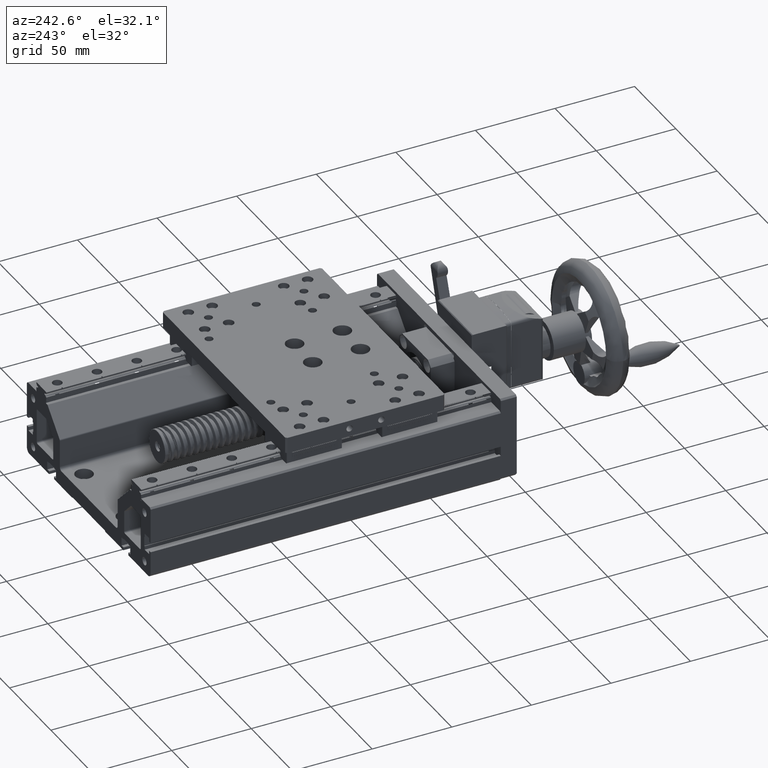
[diagram: clean part render]
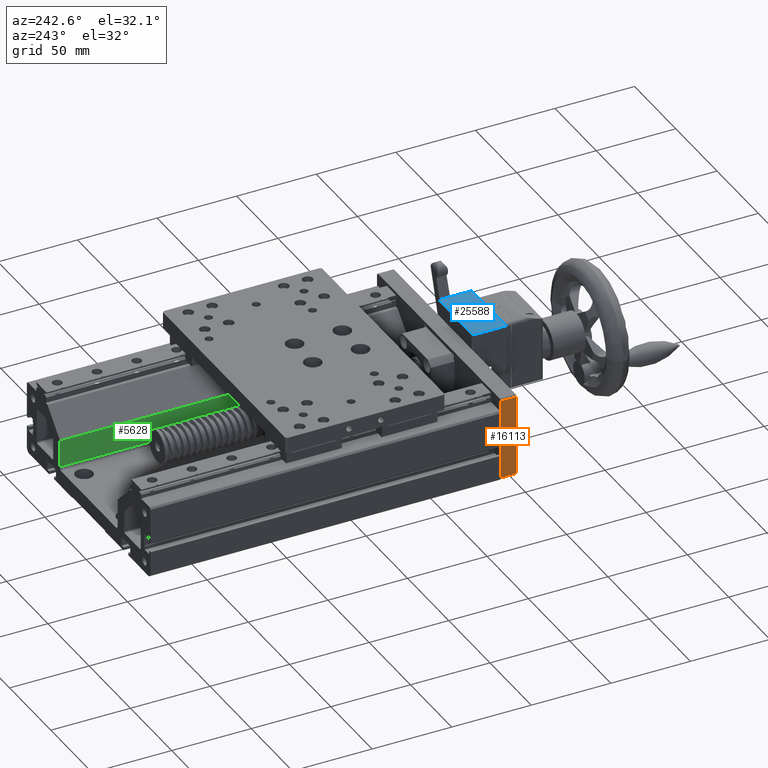
[diagram: same view with three faces highlighted in distinct colors, each labeled with its STEP entity id]
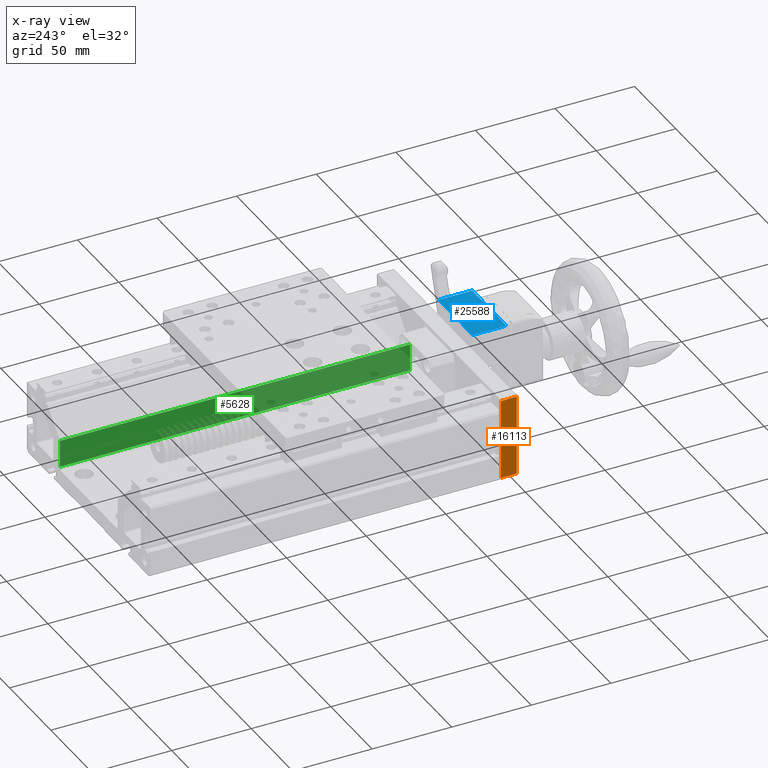
[diagram: x-ray of the same camera — body ghosted, the three highlighted faces saturated]
A machine part, auxiliary view with three faces highlighted in distinct colors.
The next image is the same camera in x-ray (body ghosted, the three faces saturated) — at least one of them is partly hidden behind the body in this view.
Their STEP definitions:

[orange] entity #16113 — the highlighted planar face has unit normal (1, -0, 0).
#181 = CARTESIAN_POINT ( 'NONE',  ( -102.8264794798026571, -143.0472645979103845, 29.99999999999936051 ) ) ;
#778 = CARTESIAN_POINT ( 'NONE',  ( -102.8264794797981665, -133.0472645979104129, -20.50000000001084288 ) ) ;
#2611 = VERTEX_POINT ( 'NONE', #19859 ) ;
#2692 = ORIENTED_EDGE ( 'NONE', *, *, #18552, .F. ) ;
#2875 = CARTESIAN_POINT ( 'NONE',  ( -102.8264794797981949, -143.0472645979103845, -20.50000000001084288 ) ) ;
#6177 = VECTOR ( 'NONE', #13760, 1000.000000000000000 ) ;
#6607 = ORIENTED_EDGE ( 'NONE', *, *, #12298, .T. ) ;
#6642 = DIRECTION ( 'NONE',  ( 1.000000000000000000, -4.183339140829115698E-15, 8.802419739201562490E-14 ) ) ;
#7315 = DIRECTION ( 'NONE',  ( -4.282904442465670179E-15, -1.000000000000000000, 4.205762191327117395E-16 ) ) ;
#7372 = LINE ( 'NONE', #13406, #6177 ) ;
#7552 = CARTESIAN_POINT ( 'NONE',  ( -102.8264794797981665, -133.0472645979104129, -20.50000000001084288 ) ) ;
#11603 = EDGE_LOOP ( 'NONE', ( #26480, #28274, #2692, #6607 ) ) ;
#11930 = AXIS2_PLACEMENT_3D ( 'NONE', #11966, #6642, #17783 ) ;
#11966 = CARTESIAN_POINT ( 'NONE',  ( -102.8264794797981665, -133.0472645979104129, -20.50000000001084288 ) ) ;
#12298 = EDGE_CURVE ( 'NONE', #23510, #17611, #7372, .T. ) ;
#13406 = CARTESIAN_POINT ( 'NONE',  ( -102.8264794797981665, -133.0472645979104129, -20.50000000001084288 ) ) ;
#13760 = DIRECTION ( 'NONE',  ( -4.282904442465670179E-15, -1.000000000000000000, 4.205762191327117395E-16 ) ) ;
#15593 = LINE ( 'NONE', #7552, #28822 ) ;
#16113 = ADVANCED_FACE ( 'NONE', ( #17069 ), #25454, .F. ) ;
#17069 = FACE_OUTER_BOUND ( 'NONE', #11603, .T. ) ;
#17611 = VERTEX_POINT ( 'NONE', #26320 ) ;
#17783 = DIRECTION ( 'NONE',  ( 8.802419739201562490E-14, -2.785001101985128722E-16, -1.000000000000000000 ) ) ;
#18522 = VECTOR ( 'NONE', #33467, 1000.000000000000000 ) ;
#18552 = EDGE_CURVE ( 'NONE', #23510, #2611, #15593, .T. ) ;
#19859 = CARTESIAN_POINT ( 'NONE',  ( -102.8264794798026145, -133.0472645979103845, 29.99999999999936051 ) ) ;
#21971 = VERTEX_POINT ( 'NONE', #181 ) ;
#23510 = VERTEX_POINT ( 'NONE', #778 ) ;
#24295 = CARTESIAN_POINT ( 'NONE',  ( -102.8264794798026145, -133.0472645979103845, 29.99999999999936051 ) ) ;
#25454 = PLANE ( 'NONE',  #11930 ) ;
#26320 = CARTESIAN_POINT ( 'NONE',  ( -102.8264794797981949, -143.0472645979103845, -20.50000000001084288 ) ) ;
#26480 = ORIENTED_EDGE ( 'NONE', *, *, #34398, .T. ) ;
#27156 = VECTOR ( 'NONE', #7315, 1000.000000000000000 ) ;
#28274 = ORIENTED_EDGE ( 'NONE', *, *, #29823, .F. ) ;
#28822 = VECTOR ( 'NONE', #29757, 1000.000000000000000 ) ;
#29757 = DIRECTION ( 'NONE',  ( -8.802419739201562490E-14, 2.785001101985128722E-16, 1.000000000000000000 ) ) ;
#29823 = EDGE_CURVE ( 'NONE', #2611, #21971, #32250, .T. ) ;
#30411 = LINE ( 'NONE', #2875, #18522 ) ;
#32250 = LINE ( 'NONE', #24295, #27156 ) ;
#33467 = DIRECTION ( 'NONE',  ( -8.802419739201562490E-14, 2.785001101985128722E-16, 1.000000000000000000 ) ) ;
#34398 = EDGE_CURVE ( 'NONE', #17611, #21971, #30411, .T. ) ;

[blue] entity #25588 — the highlighted planar face has unit normal (-0, -0, 1).
#1417 = LINE ( 'NONE', #35443, #24086 ) ;
#3212 = LINE ( 'NONE', #3756, #15184 ) ;
#3756 = CARTESIAN_POINT ( 'NONE',  ( -6.826479479965660957, -164.5472645979089066, 40.50000000000132161 ) ) ;
#4153 = DIRECTION ( 'NONE',  ( 5.154905759538192104E-15, 1.000000000000000000, 2.330995182389588160E-16 ) ) ;
#4264 = ORIENTED_EDGE ( 'NONE', *, *, #18891, .T. ) ;
#5054 = EDGE_CURVE ( 'NONE', #9965, #23372, #3212, .T. ) ;
#5472 = CARTESIAN_POINT ( 'NONE',  ( -48.82647947996566273, -165.0472645979087076, 40.49999999999898392 ) ) ;
#5979 = LINE ( 'NONE', #6493, #8539 ) ;
#6006 = DIRECTION ( 'NONE',  ( -5.154905759538192104E-15, -1.000000000000000000, -2.330995182389588160E-16 ) ) ;
#6493 = CARTESIAN_POINT ( 'NONE',  ( -7.326479479965675168, -165.0472645979089066, 40.50000000000129319 ) ) ;
#6577 = CARTESIAN_POINT ( 'NONE',  ( -48.82647947996554905, -143.5472645979087361, 40.49999999999899103 ) ) ;
#7150 = CARTESIAN_POINT ( 'NONE',  ( -48.82647947996566273, -164.5472645979086792, 40.49999999999898392 ) ) ;
#7668 = PLANE ( 'NONE',  #15390 ) ;
#8539 = VECTOR ( 'NONE', #28709, 1000.000000000000000 ) ;
#9965 = VERTEX_POINT ( 'NONE', #7150 ) ;
#12134 = EDGE_LOOP ( 'NONE', ( #34032, #4264, #20214, #35351 ) ) ;
#12549 = DIRECTION ( 'NONE',  ( 1.000000000000000000, -4.988643906119555962E-15, 5.571237915447113664E-14 ) ) ;
#13857 = VECTOR ( 'NONE', #32615, 1000.000000000000000 ) ;
#15184 = VECTOR ( 'NONE', #12549, 1000.000000000000000 ) ;
#15390 = AXIS2_PLACEMENT_3D ( 'NONE', #5472, #27868, #6006 ) ;
#18891 = EDGE_CURVE ( 'NONE', #20080, #28440, #21557, .T. ) ;
#20080 = VERTEX_POINT ( 'NONE', #35886 ) ;
#20214 = ORIENTED_EDGE ( 'NONE', *, *, #24371, .F. ) ;
#21557 = LINE ( 'NONE', #33309, #13857 ) ;
#23372 = VERTEX_POINT ( 'NONE', #27160 ) ;
#24086 = VECTOR ( 'NONE', #4153, 1000.000000000000000 ) ;
#24371 = EDGE_CURVE ( 'NONE', #9965, #28440, #1417, .T. ) ;
#25588 = ADVANCED_FACE ( 'NONE', ( #35336 ), #7668, .T. ) ;
#27160 = CARTESIAN_POINT ( 'NONE',  ( -7.326479479965675168, -164.5472645979089066, 40.50000000000129319 ) ) ;
#27868 = DIRECTION ( 'NONE',  ( -5.554584570077736316E-14, -2.330995182386724595E-16, 1.000000000000000000 ) ) ;
#28440 = VERTEX_POINT ( 'NONE', #6577 ) ;
#28709 = DIRECTION ( 'NONE',  ( 5.154905759538192104E-15, 1.000000000000000000, 2.330995182389588160E-16 ) ) ;
#29244 = EDGE_CURVE ( 'NONE', #23372, #20080, #5979, .T. ) ;
#32615 = DIRECTION ( 'NONE',  ( -1.000000000000000000, 4.988643906119555962E-15, -5.571237915447113664E-14 ) ) ;
#33309 = CARTESIAN_POINT ( 'NONE',  ( -48.82647947996554905, -143.5472645979087361, 40.49999999999899103 ) ) ;
#34032 = ORIENTED_EDGE ( 'NONE', *, *, #29244, .T. ) ;
#35336 = FACE_OUTER_BOUND ( 'NONE', #12134, .T. ) ;
#35351 = ORIENTED_EDGE ( 'NONE', *, *, #5054, .T. ) ;
#35443 = CARTESIAN_POINT ( 'NONE',  ( -48.82647947996566273, -165.0472645979087076, 40.49999999999898392 ) ) ;
#35886 = CARTESIAN_POINT ( 'NONE',  ( -7.326479479965564146, -143.5472645979089350, 40.50000000000130029 ) ) ;

[green] entity #5628 — the highlighted planar face has unit normal (-1, 0, -0).
#206 = DIRECTION ( 'NONE',  ( -2.250025228554850752E-14, 1.151305367927246954E-28, 1.000000000000000000 ) ) ;
#332 = LINE ( 'NONE', #8216, #13942 ) ;
#622 = DIRECTION ( 'NONE',  ( -2.250025228554850436E-14, 1.151305367927246954E-28, 1.000000000000000000 ) ) ;
#2148 = EDGE_LOOP ( 'NONE', ( #21414, #6976, #4819, #17369 ) ) ;
#2485 = VECTOR ( 'NONE', #31940, 1000.000000000000000 ) ;
#3430 = VECTOR ( 'NONE', #622, 1000.000000000000000 ) ;
#4819 = ORIENTED_EDGE ( 'NONE', *, *, #10724, .T. ) ;
#5476 = DIRECTION ( 'NONE',  ( 3.491481338843133355E-15, 1.000000000000000000, -3.657132581846951845E-29 ) ) ;
#5628 = ADVANCED_FACE ( 'NONE', ( #27219 ), #22321, .T. ) ;
#6976 = ORIENTED_EDGE ( 'NONE', *, *, #23558, .F. ) ;
#8216 = CARTESIAN_POINT ( 'NONE',  ( 7.173520520198928274, -133.0472645979089066, 6.085786437626694578 ) ) ;
#8327 = LINE ( 'NONE', #31050, #3430 ) ;
#8838 = CARTESIAN_POINT ( 'NONE',  ( 7.173520520199705430, 86.95273540209107921, 6.085786437626694578 ) ) ;
#10127 = VERTEX_POINT ( 'NONE', #15175 ) ;
#10724 = EDGE_CURVE ( 'NONE', #25807, #30326, #8327, .T. ) ;
#12326 = CARTESIAN_POINT ( 'NONE',  ( 7.173520520199760497, 86.95273540209107921, 6.085786437626694578 ) ) ;
#13942 = VECTOR ( 'NONE', #5476, 1000.000000000000000 ) ;
#14101 = CARTESIAN_POINT ( 'NONE',  ( 7.173520520198984229, -133.0472645979089066, 6.085786437626694578 ) ) ;
#15175 = CARTESIAN_POINT ( 'NONE',  ( 7.173520520200149519, 86.95273540209107921, -11.00000000000100897 ) ) ;
#15918 = VECTOR ( 'NONE', #21054, 1000.000000000000000 ) ;
#17369 = ORIENTED_EDGE ( 'NONE', *, *, #35615, .T. ) ;
#19244 = DIRECTION ( 'NONE',  ( -1.000000000000000000, 3.491481338843133355E-15, -2.250025228554850752E-14 ) ) ;
#19794 = CARTESIAN_POINT ( 'NONE',  ( 7.173520520199372363, -133.0472645979089066, -11.00000000000100897 ) ) ;
#21054 = DIRECTION ( 'NONE',  ( -2.250025228554850436E-14, 1.151305367927246954E-28, 1.000000000000000000 ) ) ;
#21414 = ORIENTED_EDGE ( 'NONE', *, *, #23549, .F. ) ;
#22321 = PLANE ( 'NONE',  #29147 ) ;
#23549 = EDGE_CURVE ( 'NONE', #10127, #25821, #29758, .T. ) ;
#23558 = EDGE_CURVE ( 'NONE', #25807, #10127, #35028, .T. ) ;
#25807 = VERTEX_POINT ( 'NONE', #19794 ) ;
#25821 = VERTEX_POINT ( 'NONE', #8838 ) ;
#27219 = FACE_OUTER_BOUND ( 'NONE', #2148, .T. ) ;
#29064 = CARTESIAN_POINT ( 'NONE',  ( 7.173520520198928274, -133.0472645979089066, 6.085786437626694578 ) ) ;
#29147 = AXIS2_PLACEMENT_3D ( 'NONE', #14101, #19244, #206 ) ;
#29398 = CARTESIAN_POINT ( 'NONE',  ( 7.173520520199372363, -133.0472645979089066, -11.00000000000100897 ) ) ;
#29758 = LINE ( 'NONE', #12326, #15918 ) ;
#30326 = VERTEX_POINT ( 'NONE', #29064 ) ;
#31050 = CARTESIAN_POINT ( 'NONE',  ( 7.173520520198984229, -133.0472645979089066, 6.085786437626694578 ) ) ;
#31940 = DIRECTION ( 'NONE',  ( 3.491481338843133355E-15, 1.000000000000000000, -3.657132581846951845E-29 ) ) ;
#35028 = LINE ( 'NONE', #29398, #2485 ) ;
#35615 = EDGE_CURVE ( 'NONE', #30326, #25821, #332, .T. ) ;